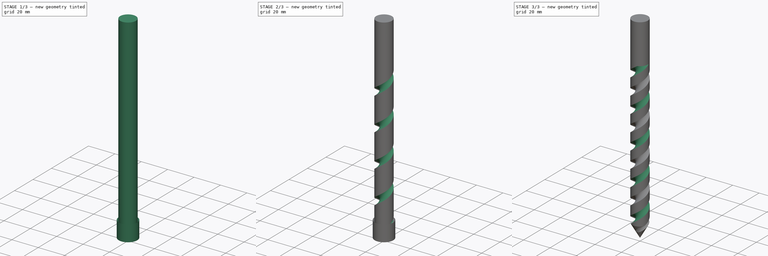
[diagram: build sequence overview — one tinted view per stage of 3, left to right]
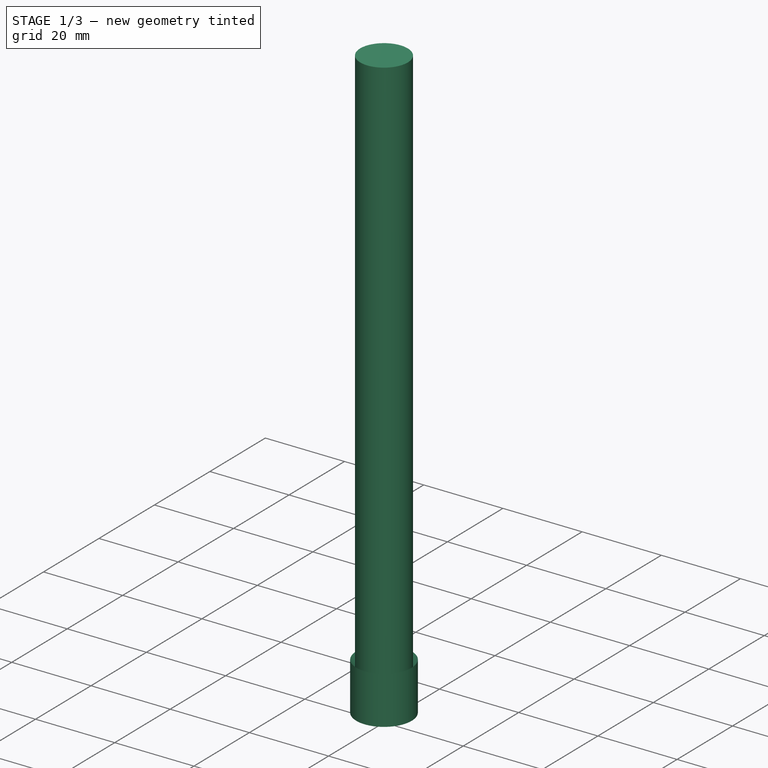
[diagram: stage 1 of 3 — iso view after this stage's code; geometry added in this stage tinted green]
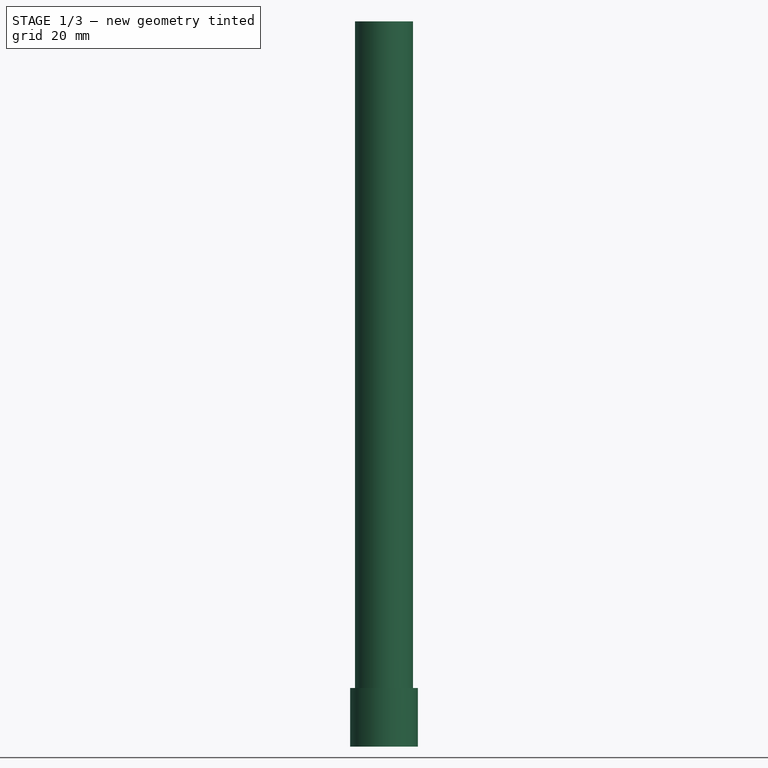
[diagram: stage 1 of 3 — front view after this stage's code; geometry added in this stage tinted green]
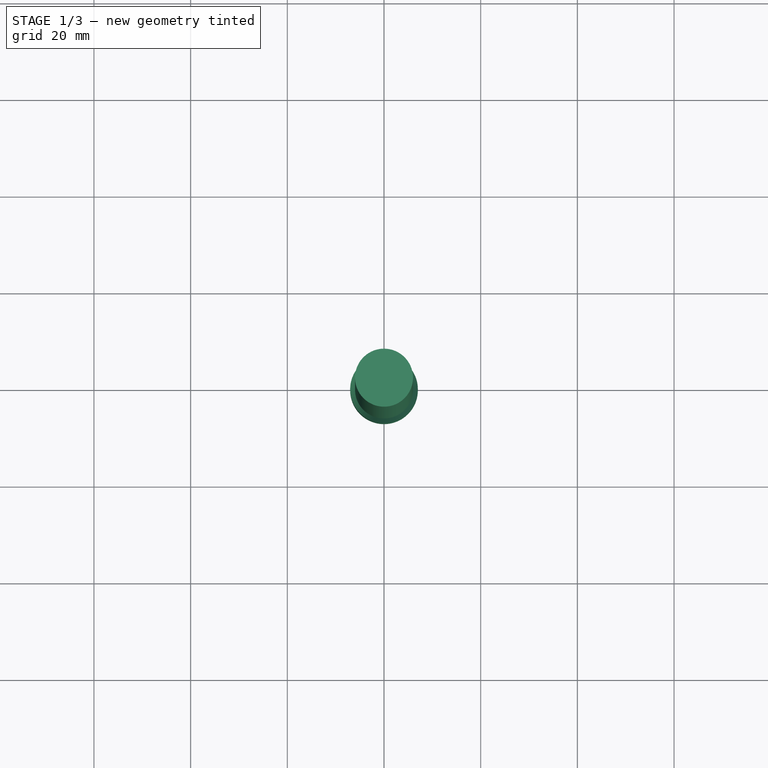
[diagram: stage 1 of 3 — top view after this stage's code; geometry added in this stage tinted green]
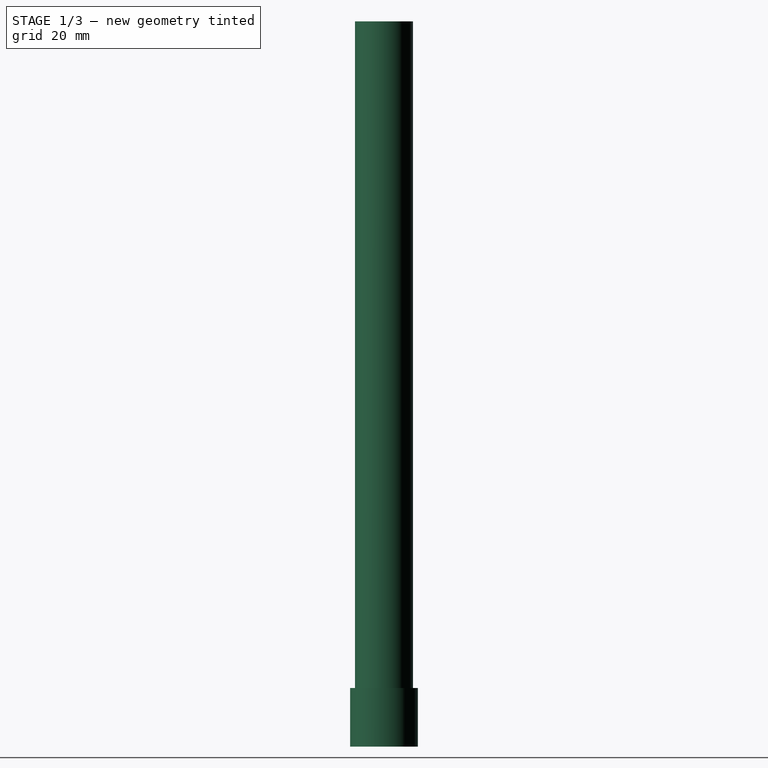
[diagram: stage 1 of 3 — right view after this stage's code; geometry added in this stage tinted green]
FCSTD DOCUMENT  (FreeCAD 1.0R39109 (Git))
Label: sruba
License: All rights reserved
LicenseURL: https://en.wikipedia.org/wiki/All_rights_reserved
objects: PartDesign::Body×4, Sketcher::SketchObject×2, PartDesign::AdditiveCylinder×1, PartDesign::SubtractiveHelix×1, PartDesign::PolarPattern×1, PartDesign::Revolution×1, PartDesign::Boolean×1
note: 21 computed .brp shape members not serialized (recipe doc carries the construction recipe); baked Part::Feature solids carry a one-line shape summary decoded from their .brp

FEATURE [PartDesign::Body] Body  label="Zawartość"
  AllowCompound = false
  Origin = -> Origin
FEATURE [PartDesign::Body] Body001  label="Zawartość001"
  AllowCompound = false
  Origin = -> Origin001
FEATURE [PartDesign::AdditiveCylinder] Cylinder
  Angle = 360
  AttacherType = Attacher::AttachEngine3D
  FirstAngle = 0
  Height = 150
  Radius = 6
  Refine = true
  SecondAngle = 0
  Suppressed = false
FEATURE [Sketcher::SketchObject] Sketch001
  ArcFitTolerance = 1e-06
  AttachmentSupport = -> [XZ_Plane003]
  FullyConstrained = true
  MakeInternals = false
  MapMode = 5
  Placement = pos=(0,0,0) rot=(1,0,0;1.5708rad)
  sketch-geometry (3):
    g0: LineSegment StartX=9e-16 StartY=0 StartZ=0 EndX=7 EndY=0 EndZ=0
    g1: LineSegment StartX=7 StartY=0 StartZ=0 EndX=7 EndY=12.1244 EndZ=0
    g2: LineSegment StartX=7 StartY=12.1244 StartZ=0 EndX=9e-16 EndY=0 EndZ=0
  constraints (8):
    c: Coincident(g-1,g0)
    c: PointOnObject(g0,g-1)
    c: Coincident(g0,g1)
    c: Vertical(g1)
    c: Coincident(g1,g2)
    c: Coincident(g2,g0)
    c: Angle(g0,g2) = 1.0472
    c: DistanceX(g0,g0) = 7
FEATURE [PartDesign::Revolution] Revolution
  Angle = 360
  Angle2 = 60
  Axis = (0,2e-16,1)
  Base = (0,0,0)
  Placement = pos=(0,0,0) rot=(1,0,0;1.5708rad)
  Profile = -> Sketch001
  ReferenceAxis = -> Sketch001 [V_Axis]
  Refine = true
  Reversed = true
  Suppressed = false
  Type = 0
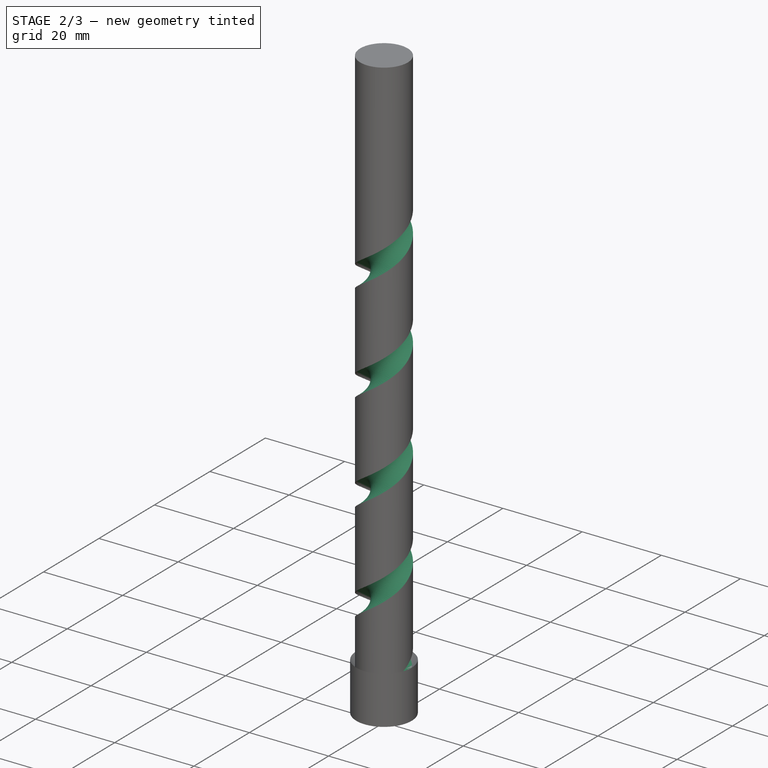
[diagram: stage 2 of 3 — iso view after this stage's code; geometry added in this stage tinted green]
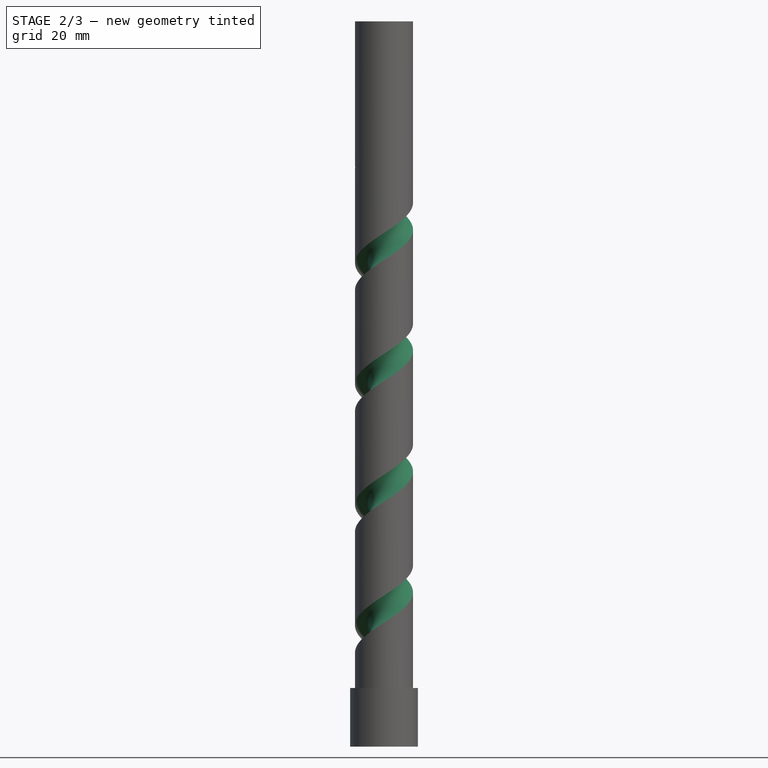
[diagram: stage 2 of 3 — front view after this stage's code; geometry added in this stage tinted green]
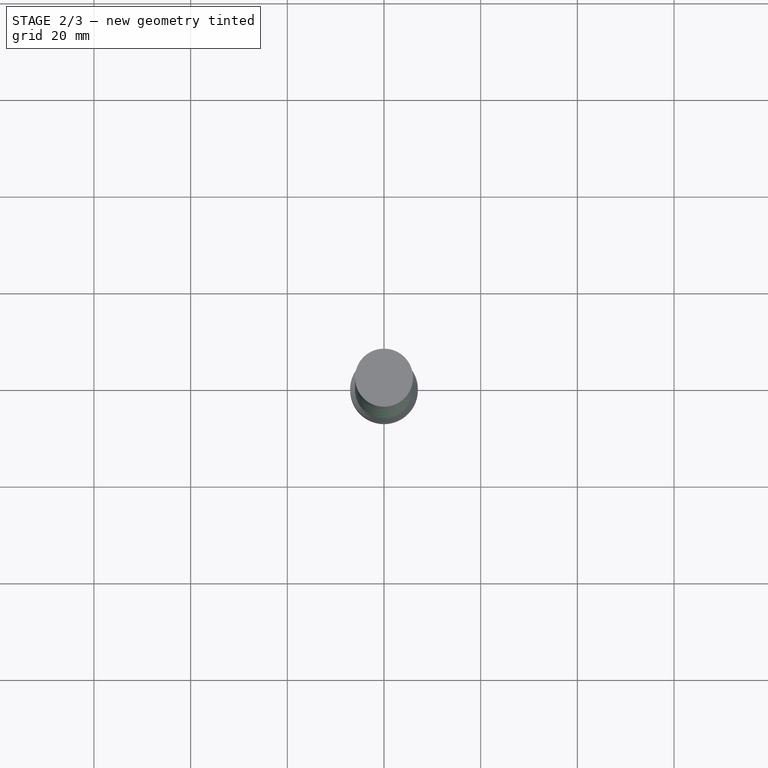
[diagram: stage 2 of 3 — top view after this stage's code; geometry added in this stage tinted green]
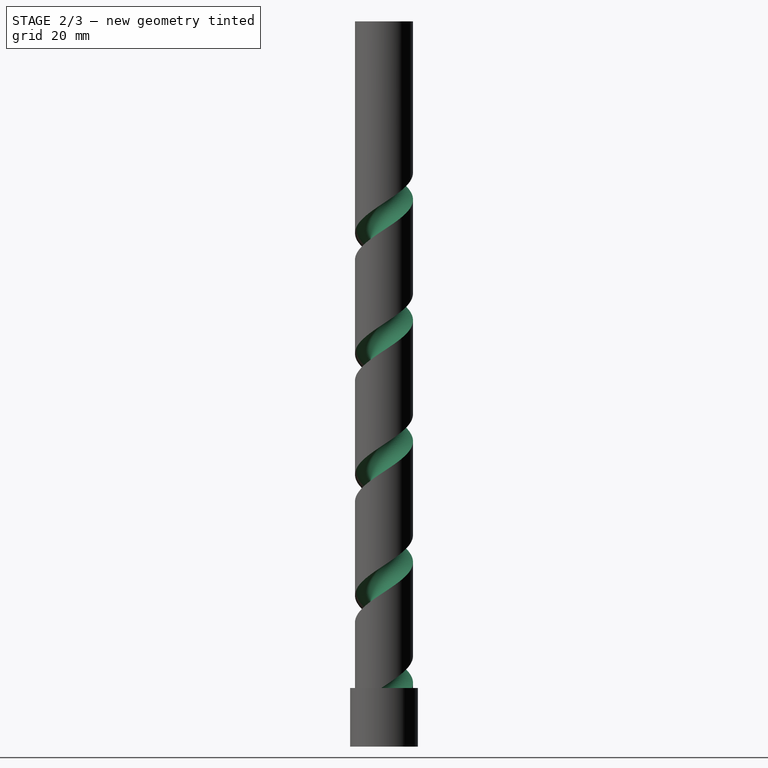
[diagram: stage 2 of 3 — right view after this stage's code; geometry added in this stage tinted green]
FEATURE [Sketcher::SketchObject] Sketch
  ArcFitTolerance = 1e-06
  AttachmentSupport = -> [Cylinder]
  ExternalGeometry = -> [Cylinder]
  FullyConstrained = true
  MakeInternals = false
  MapMode = 5
  Placement = pos=(0,0,0) rot=(1,0,0;3.14159rad)
  sketch-geometry (3):
    g0: LineSegment StartX=-1 StartY=5.91608 StartZ=0 EndX=-3.07345 EndY=-0.463638 EndZ=0
    g1: ArcOfCircle CenterX=-4.5 CenterY=0 CenterZ=0 NormalX=0 NormalY=0 NormalZ=1 AngleXU=0 Radius=1.5 StartAngle=3.1416 EndAngle=5.96895
    g2: ArcOfCircle CenterX=0 CenterY=0 CenterZ=0 NormalX=0 NormalY=0 NormalZ=1 AngleXU=0 Radius=6 StartAngle=1.73824 EndAngle=3.1416
  constraints (9):
    c: PointOnObject(g0,g-3)
    c: PointOnObject(g1,g-1)
    c: Coincident(g2,g-1)
    c: Coincident(g2,g1)
    c: Coincident(g2,g0)
    c: Tangent(g1,g0) = 1.5708
    c: DistanceX(g0,g2) = 1
    c: DistanceX(g1,g2) = 4.5
    c: Radius(g1) = 1.5
FEATURE [PartDesign::SubtractiveHelix] SubtractiveHelix
  Angle = 0
  Axis = (1e-16,1e-16,1)
  Base = (0,0,0)
  BaseFeature = -> Cylinder
  Growth = 0
  HasBeenEdited = true
  Height = 120
  LeftHanded = false
  Mode = 0
  Outside = false
  Pitch = 25
  Profile = -> Sketch
  ReferenceAxis = -> Z_Axis002
  Refine = true
  Suppressed = false
  Tolerance = 0.1
  Turns = 4.8
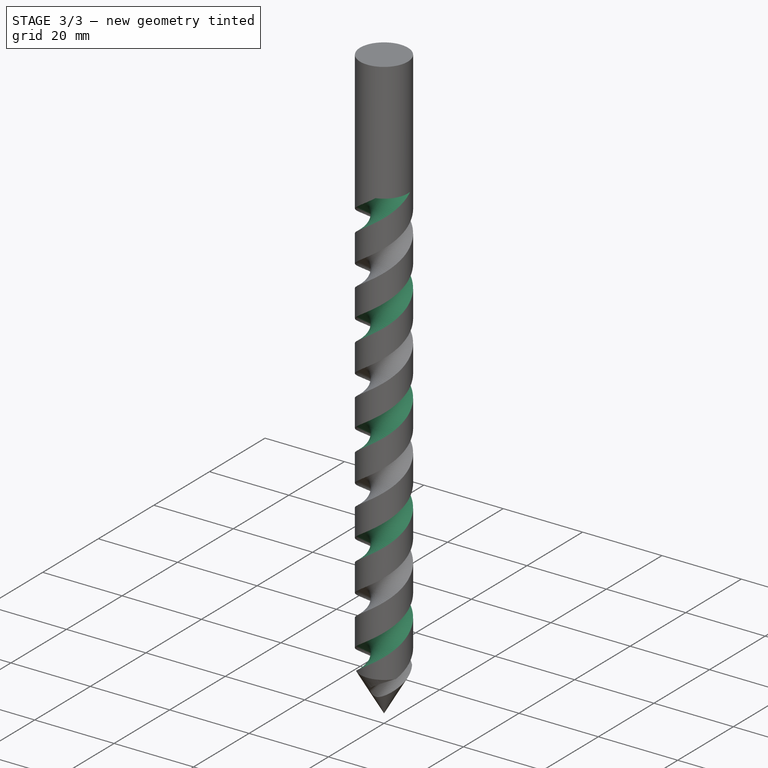
[diagram: stage 3 of 3 — iso view after this stage's code; geometry added in this stage tinted green]
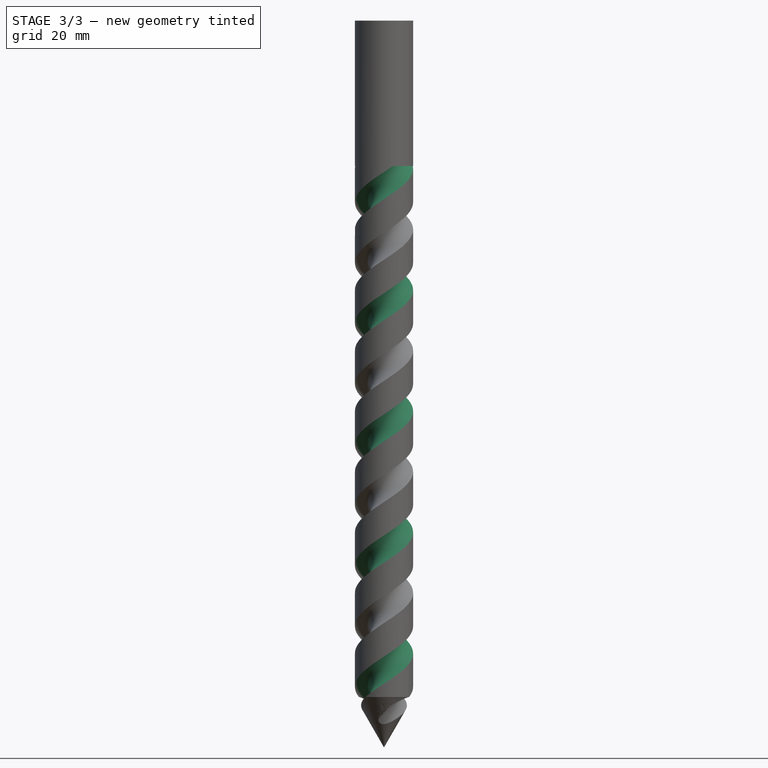
[diagram: stage 3 of 3 — front view after this stage's code; geometry added in this stage tinted green]
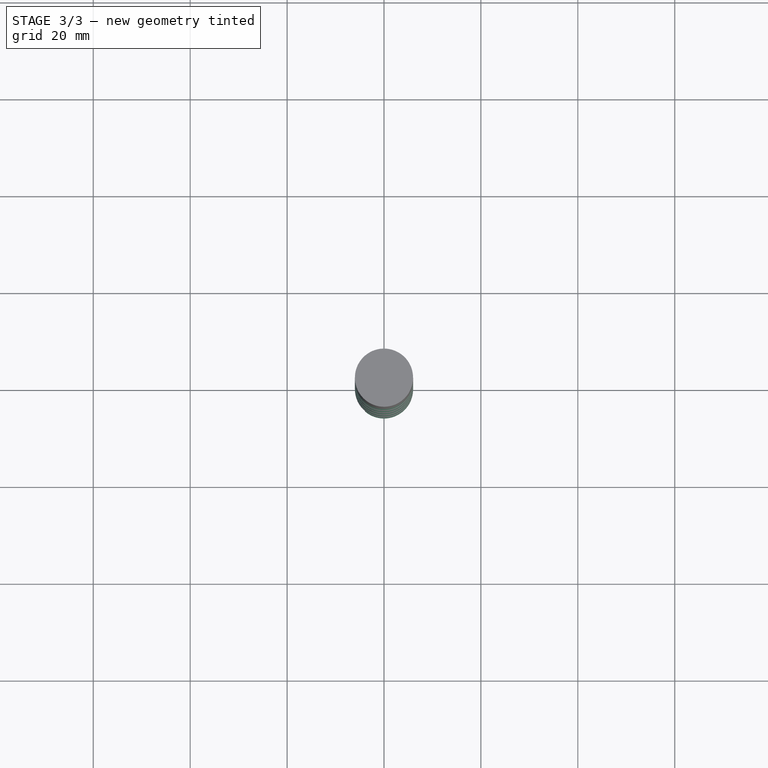
[diagram: stage 3 of 3 — top view after this stage's code; geometry added in this stage tinted green]
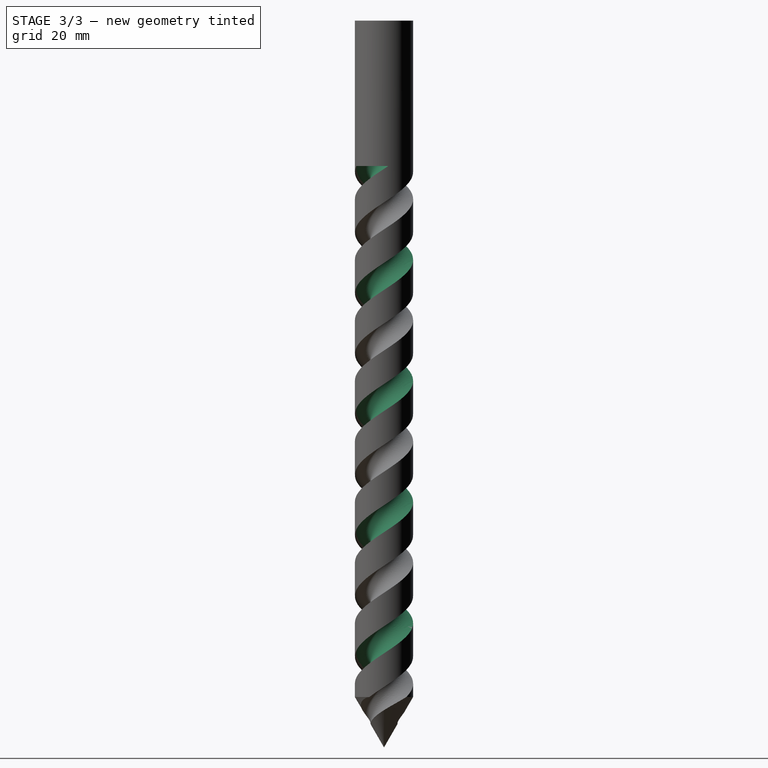
[diagram: stage 3 of 3 — right view after this stage's code; geometry added in this stage tinted green]
FEATURE [PartDesign::PolarPattern] PolarPattern
  Angle = 360
  Axis = -> Sketch [N_Axis]
  BaseFeature = -> SubtractiveHelix
  Mode = 0
  Occurrences = 2
  Offset = 120
  Originals = -> [SubtractiveHelix]
  Refine = true
  Suppressed = false
  TransformMode = 0
FEATURE [PartDesign::Body] Body003  label="Zawartość003"
  AllowCompound = false
  Group = -> [Sketch001,Revolution]
  Origin = -> Origin003
  Tip = -> Revolution
FEATURE [PartDesign::Boolean] Boolean
  BaseFeature = -> PolarPattern
  Group = -> [Body003]
  Refine = true
  Suppressed = false
  Type = 1
  UsePlacement = true
FEATURE [PartDesign::Body] Body002  label="Zawartość002"
  AllowCompound = false
  Group = -> [Cylinder,Sketch,SubtractiveHelix,PolarPattern,Boolean]
  Origin = -> Origin002
  Tip = -> Boolean
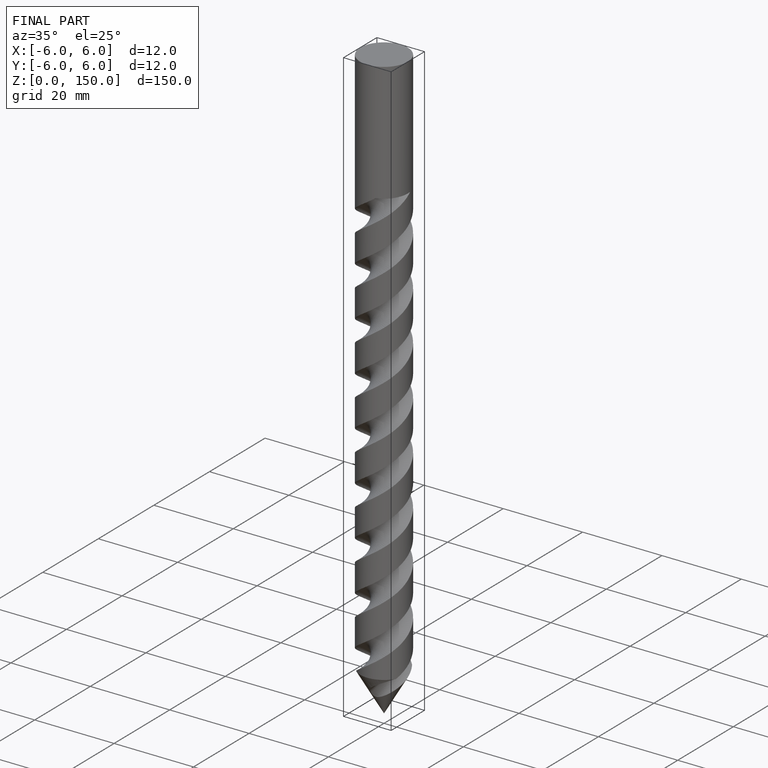
[diagram: finished part — iso view with bounding-box wireframe]
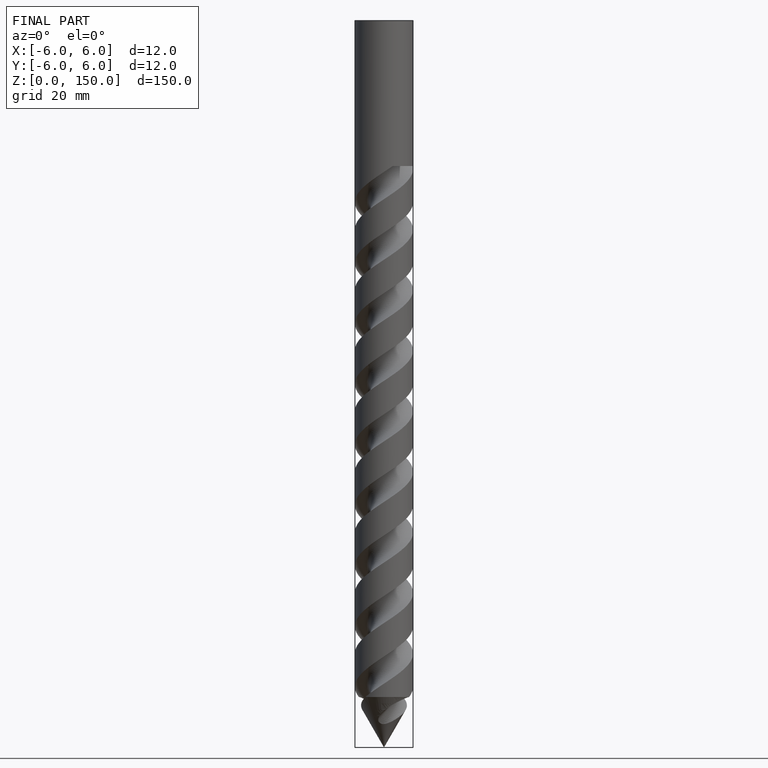
[diagram: finished part — front view with bounding-box wireframe]
